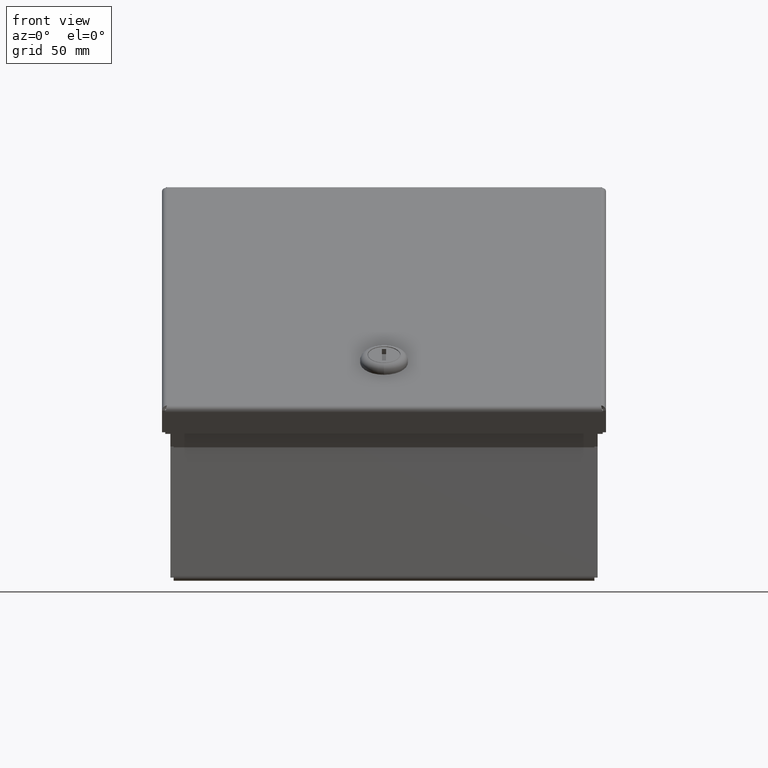
[diagram: clean part render]
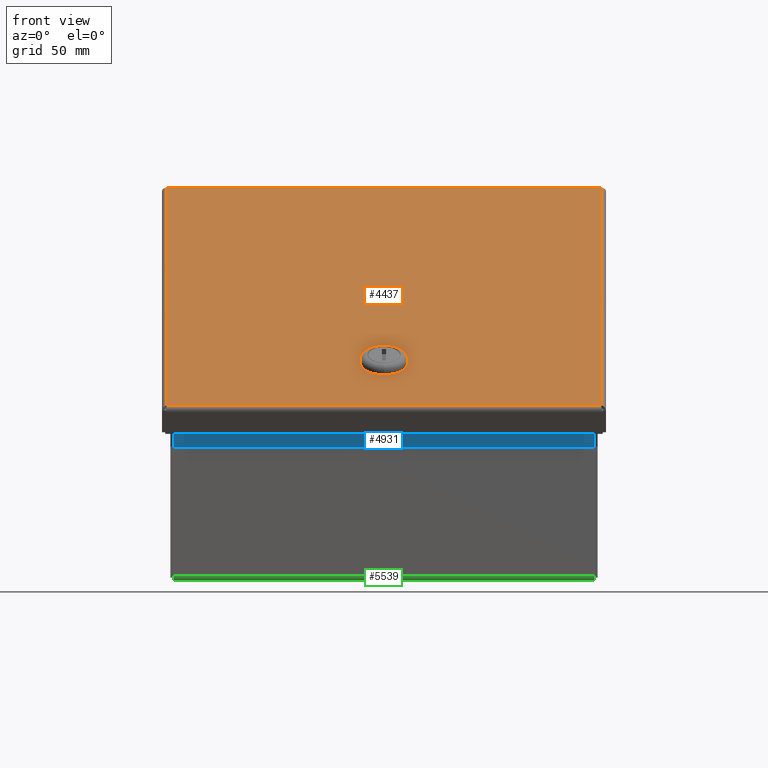
[diagram: same view with three faces highlighted in distinct colors, each labeled with its STEP entity id]
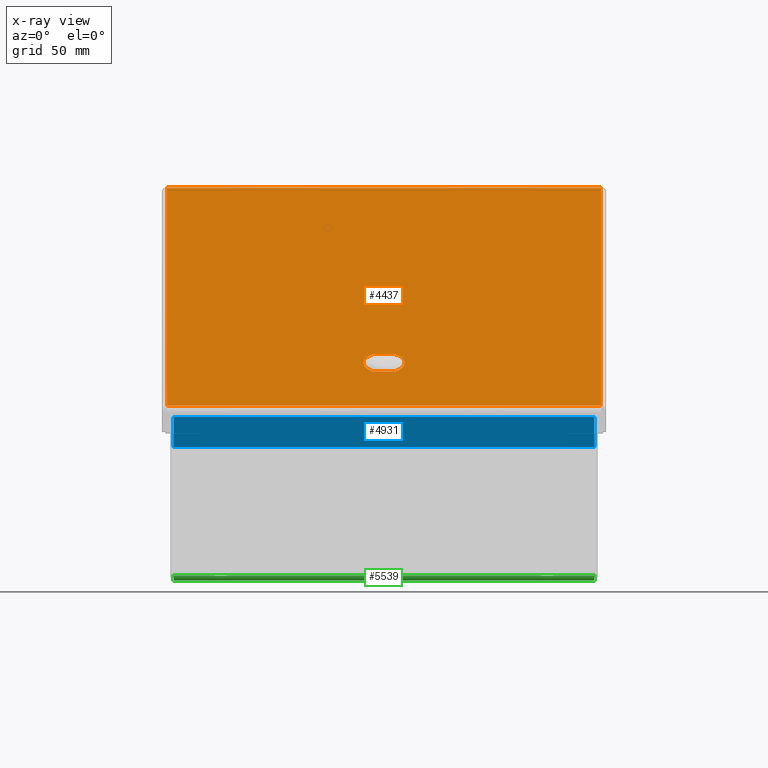
[diagram: x-ray of the same camera — body ghosted, the three highlighted faces saturated]
A machine part, front view with three faces highlighted in distinct colors.
The next image is the same camera in x-ray (body ghosted, the three faces saturated) — at least one of them is partly hidden behind the body in this view.
Their STEP definitions:

[orange] entity #4437 — the highlighted planar face has unit normal (0, -0.5, 0.866).
#4437 = ADVANCED_FACE( '', ( #9481, #9482 ), #9483, .T. );
#9481 = FACE_BOUND( '', #32278, .T. );
#9482 = FACE_OUTER_BOUND( '', #32279, .T. );
#9483 = PLANE( '', #32280 );
#32278 = EDGE_LOOP( '', ( #56985, #56986, #56987, #56988 ) );
#32279 = EDGE_LOOP( '', ( #56989, #56990, #56991, #56992 ) );
#32280 = AXIS2_PLACEMENT_3D( '', #56993, #56994, #56995 );
#56985 = ORIENTED_EDGE( '', *, *, #67449, .F. );
#56986 = ORIENTED_EDGE( '', *, *, #66543, .F. );
#56987 = ORIENTED_EDGE( '', *, *, #68225, .F. );
#56988 = ORIENTED_EDGE( '', *, *, #69103, .F. );
#56989 = ORIENTED_EDGE( '', *, *, #65684, .T. );
#56990 = ORIENTED_EDGE( '', *, *, #68656, .F. );
#56991 = ORIENTED_EDGE( '', *, *, #64923, .T. );
#56992 = ORIENTED_EDGE( '', *, *, #66234, .T. );
#56993 = CARTESIAN_POINT( '', ( 0.000000000000000, 0.000000000000000, 1.52400000000000 ) );
#56994 = DIRECTION( '', ( 0.000000000000000, 0.000000000000000, 1.00000000000000 ) );
#56995 = DIRECTION( '', ( 1.00000000000000, 0.000000000000000, 0.000000000000000 ) );
#64923 = EDGE_CURVE( '', #70997, #70995, #70998, .T. );
#65684 = EDGE_CURVE( '', #72372, #72370, #72373, .T. );
#66234 = EDGE_CURVE( '', #70995, #72372, #73284, .T. );
#66543 = EDGE_CURVE( '', #73764, #73766, #73767, .T. );
#67449 = EDGE_CURVE( '', #73766, #75162, #75163, .T. );
#68225 = EDGE_CURVE( '', #76324, #73764, #76326, .T. );
#68656 = EDGE_CURVE( '', #70997, #72370, #76905, .T. );
#69103 = EDGE_CURVE( '', #75162, #76324, #77498, .T. );
#70995 = VERTEX_POINT( '', #80268 );
#70997 = VERTEX_POINT( '', #80279 );
#70998 = LINE( '', #80280, #80281 );
#72370 = VERTEX_POINT( '', #84818 );
#72372 = VERTEX_POINT( '', #84829 );
#72373 = LINE( '', #84830, #84831 );
#73284 = LINE( '', #87302, #87303 );
#73764 = VERTEX_POINT( '', #88867 );
#73766 = VERTEX_POINT( '', #88870 );
#73767 = LINE( '', #88871, #88872 );
#75162 = VERTEX_POINT( '', #93007 );
#75163 = CIRCLE( '', #93008, 9.71550000000000 );
#76324 = VERTEX_POINT( '', #96470 );
#76326 = CIRCLE( '', #96473, 9.71550000000000 );
#76905 = LINE( '', #98045, #98046 );
#77498 = LINE( '', #99716, #99717 );
#80268 = CARTESIAN_POINT( '', ( -103.251000000000, 103.517700000000, 1.52400000000000 ) );
#80279 = CARTESIAN_POINT( '', ( 103.251000000000, 103.517700000000, 1.52400000000000 ) );
#80280 = CARTESIAN_POINT( '', ( -105.587800000000, 103.517700000000, 1.52400000000000 ) );
#80281 = VECTOR( '', #103892, 1000.00000000000 );
#84818 = CARTESIAN_POINT( '', ( 103.251000000000, -103.517700000000, 1.52400000000000 ) );
#84829 = CARTESIAN_POINT( '', ( -103.251000000000, -103.517700000000, 1.52400000000000 ) );
#84830 = CARTESIAN_POINT( '', ( 103.251000000000, -103.517700000000, 1.52400000000000 ) );
#84831 = VECTOR( '', #104210, 1000.00000000000 );
#87302 = CARTESIAN_POINT( '', ( -103.251000000000, -105.854500000000, 1.52400000000000 ) );
#87303 = VECTOR( '', #104507, 1000.00000000000 );
#88867 = CARTESIAN_POINT( '', ( 5.32226984002127, -54.8767000000000, 1.52400000000000 ) );
#88870 = CARTESIAN_POINT( '', ( -5.32226984002138, -54.8767000000000, 1.52400000000000 ) );
#88871 = CARTESIAN_POINT( '', ( -5.32226984002138, -54.8767000000000, 1.52400000000000 ) );
#88872 = VECTOR( '', #104683, 1000.00000000000 );
#93007 = CARTESIAN_POINT( '', ( -5.32226984002138, -71.1327000000000, 1.52400000000000 ) );
#93008 = AXIS2_PLACEMENT_3D( '', #105212, #105213, #105214 );
#96470 = CARTESIAN_POINT( '', ( 5.32226984002127, -71.1327000000000, 1.52400000000000 ) );
#96473 = AXIS2_PLACEMENT_3D( '', #105647, #105648, #105649 );
#98045 = CARTESIAN_POINT( '', ( 103.251000000000, 103.517700000000, 1.52400000000000 ) );
#98046 = VECTOR( '', #105854, 1000.00000000000 );
#99716 = CARTESIAN_POINT( '', ( -5.32226984002138, -71.1327000000000, 1.52400000000000 ) );
#99717 = VECTOR( '', #106066, 1000.00000000000 );
#103892 = DIRECTION( '', ( -1.00000000000000, 0.000000000000000, -2.07662976896153E-018 ) );
#104210 = DIRECTION( '', ( 1.00000000000000, 0.000000000000000, -2.10012914642087E-018 ) );
#104507 = DIRECTION( '', ( 0.000000000000000, -1.00000000000000, -3.10700897010827E-018 ) );
#104683 = DIRECTION( '', ( -1.00000000000000, 0.000000000000000, 0.000000000000000 ) );
#105212 = CARTESIAN_POINT( '', ( -5.55111512312578E-014, -63.0047000000000, 1.52400000000000 ) );
#105213 = DIRECTION( '', ( 0.000000000000000, -0.000000000000000, 1.00000000000000 ) );
#105214 = DIRECTION( '', ( 0.000000000000000, 1.00000000000000, 0.000000000000000 ) );
#105647 = CARTESIAN_POINT( '', ( 0.000000000000000, -63.0047000000000, 1.52400000000000 ) );
#105648 = DIRECTION( '', ( 0.000000000000000, -0.000000000000000, 1.00000000000000 ) );
#105649 = DIRECTION( '', ( 0.000000000000000, 1.00000000000000, 0.000000000000000 ) );
#105854 = DIRECTION( '', ( -2.62963512051146E-016, -1.00000000000000, 0.000000000000000 ) );
#106066 = DIRECTION( '', ( 1.00000000000000, 0.000000000000000, 0.000000000000000 ) );

[blue] entity #4931 — the highlighted planar face has unit normal (0, 0.866, 0.5).
#4931 = ADVANCED_FACE( '', ( #10257 ), #10258, .F. );
#10257 = FACE_OUTER_BOUND( '', #36763, .T. );
#10258 = PLANE( '', #36764 );
#36763 = EDGE_LOOP( '', ( #59365, #59366, #59367, #59368 ) );
#36764 = AXIS2_PLACEMENT_3D( '', #59369, #59370, #59371 );
#59365 = ORIENTED_EDGE( '', *, *, #68045, .F. );
#59366 = ORIENTED_EDGE( '', *, *, #69715, .T. );
#59367 = ORIENTED_EDGE( '', *, *, #69223, .F. );
#59368 = ORIENTED_EDGE( '', *, *, #64715, .F. );
#59369 = CARTESIAN_POINT( '', ( 0.000000000000000, -43.2678654751002, -24.9807137793096 ) );
#59370 = DIRECTION( '', ( 0.000000000000000, 0.866025403784439, 0.500000000000000 ) );
#59371 = DIRECTION( '', ( 0.000000000000000, -0.500000000000000, 0.866025403784439 ) );
#64715 = EDGE_CURVE( '', #70623, #70625, #70626, .T. );
#68045 = EDGE_CURVE( '', #76062, #70623, #76064, .T. );
#69223 = EDGE_CURVE( '', #70625, #77657, #77658, .T. );
#69715 = EDGE_CURVE( '', #76062, #77657, #78242, .T. );
#70623 = VERTEX_POINT( '', #79415 );
#70625 = VERTEX_POINT( '', #79417 );
#70626 = LINE( '', #79418, #79419 );
#76062 = VERTEX_POINT( '', #95653 );
#76064 = LINE( '', #95655, #95656 );
#77657 = VERTEX_POINT( '', #100193 );
#77658 = LINE( '', #100194, #100195 );
#78242 = LINE( '', #101676, #101677 );
#79415 = CARTESIAN_POINT( '', ( 100.076000000000, -94.4317945518040, 63.6378108963921 ) );
#79417 = CARTESIAN_POINT( '', ( -100.076000000000, -94.4317945518040, 63.6378108963921 ) );
#79418 = CARTESIAN_POINT( '', ( 100.076000000000, -94.4317945518040, 63.6378108963921 ) );
#79419 = VECTOR( '', #103746, 1000.00000000000 );
#95653 = CARTESIAN_POINT( '', ( 100.076000000000, -102.678522715367, 77.9215630718931 ) );
#95655 = CARTESIAN_POINT( '', ( 100.076000000000, -94.3244018249349, 63.4518012370914 ) );
#95656 = VECTOR( '', #105554, 1000.00000000000 );
#100193 = CARTESIAN_POINT( '', ( -100.076000000000, -102.678522715367, 77.9215630718931 ) );
#100194 = CARTESIAN_POINT( '', ( -100.076000000000, -94.3244018249349, 63.4518012370914 ) );
#100195 = VECTOR( '', #106128, 1000.00000000000 );
#101676 = CARTESIAN_POINT( '', ( 100.076000000000, -102.678522715367, 77.9215630718931 ) );
#101677 = VECTOR( '', #106356, 1000.00000000000 );
#103746 = DIRECTION( '', ( -1.00000000000000, 0.000000000000000, 0.000000000000000 ) );
#105554 = DIRECTION( '', ( 1.45736491077249E-015, 0.500000000000000, -0.866025403784439 ) );
#106128 = DIRECTION( '', ( 0.000000000000000, -0.500000000000000, 0.866025403784439 ) );
#106356 = DIRECTION( '', ( -1.00000000000000, 0.000000000000000, 0.000000000000000 ) );

[green] entity #5539 — the highlighted cylindrical surface (edge-blend (fillet) strip) has radius 2.3368 mm, axis along (1, -0, 0).
#5539 = ADVANCED_FACE( '', ( #11278 ), #11279, .T. );
#11278 = FACE_OUTER_BOUND( '', #41486, .T. );
#11279 = CYLINDRICAL_SURFACE( '', #41487, 2.33680000000000 );
#41486 = EDGE_LOOP( '', ( #63085, #63086, #63087, #63088 ) );
#41487 = AXIS2_PLACEMENT_3D( '', #63089, #63090, #63091 );
#63085 = ORIENTED_EDGE( '', *, *, #68843, .F. );
#63086 = ORIENTED_EDGE( '', *, *, #68046, .F. );
#63087 = ORIENTED_EDGE( '', *, *, #66747, .F. );
#63088 = ORIENTED_EDGE( '', *, *, #69232, .F. );
#63089 = CARTESIAN_POINT( '', ( 100.076000000000, -91.9861000000000, 2.33680000000000 ) );
#63090 = DIRECTION( '', ( 1.00000000000000, -6.93362434940168E-017, -0.000000000000000 ) );
#63091 = DIRECTION( '', ( 0.000000000000000, 0.000000000000000, 1.00000000000000 ) );
#66747 = EDGE_CURVE( '', #74091, #74093, #74094, .T. );
#68046 = EDGE_CURVE( '', #74093, #76065, #76066, .T. );
#68843 = EDGE_CURVE( '', #76065, #77159, #77160, .T. );
#69232 = EDGE_CURVE( '', #77159, #74091, #77671, .T. );
#74091 = VERTEX_POINT( '', #89794 );
#74093 = VERTEX_POINT( '', #89797 );
#74094 = LINE( '', #89798, #89799 );
#76065 = VERTEX_POINT( '', #95657 );
#76066 = CIRCLE( '', #95658, 2.33680000000000 );
#77159 = VERTEX_POINT( '', #98783 );
#77160 = LINE( '', #98784, #98785 );
#77671 = CIRCLE( '', #100211, 2.33680000000000 );
#89794 = CARTESIAN_POINT( '', ( -100.076000000000, -94.3229000000000, 2.33680000000000 ) );
#89797 = CARTESIAN_POINT( '', ( 100.076000000000, -94.3229000000000, 2.33680000000000 ) );
#89798 = CARTESIAN_POINT( '', ( -100.076000000000, -94.3229000000000, 2.33680000000000 ) );
#89799 = VECTOR( '', #104809, 1000.00000000000 );
#95657 = CARTESIAN_POINT( '', ( 100.076000000000, -91.9861000000000, 0.000000000000000 ) );
#95658 = AXIS2_PLACEMENT_3D( '', #105555, #105556, #105557 );
#98783 = CARTESIAN_POINT( '', ( -100.076000000000, -91.9861000000000, 0.000000000000000 ) );
#98784 = CARTESIAN_POINT( '', ( 100.076000000000, -91.9861000000000, 0.000000000000000 ) );
#98785 = VECTOR( '', #105948, 1000.00000000000 );
#100211 = AXIS2_PLACEMENT_3D( '', #106147, #106148, #106149 );
#104809 = DIRECTION( '', ( 1.00000000000000, 0.000000000000000, 0.000000000000000 ) );
#105555 = CARTESIAN_POINT( '', ( 100.076000000000, -91.9861000000000, 2.33680000000000 ) );
#105556 = DIRECTION( '', ( 1.00000000000000, -6.93362434940168E-017, 0.000000000000000 ) );
#105557 = DIRECTION( '', ( 0.000000000000000, 0.000000000000000, 1.00000000000000 ) );
#105948 = DIRECTION( '', ( -1.00000000000000, 0.000000000000000, 0.000000000000000 ) );
#106147 = CARTESIAN_POINT( '', ( -100.076000000000, -91.9861000000000, 2.33680000000000 ) );
#106148 = DIRECTION( '', ( -1.00000000000000, 6.93362434940168E-017, 0.000000000000000 ) );
#106149 = DIRECTION( '', ( 0.000000000000000, 0.000000000000000, 1.00000000000000 ) );